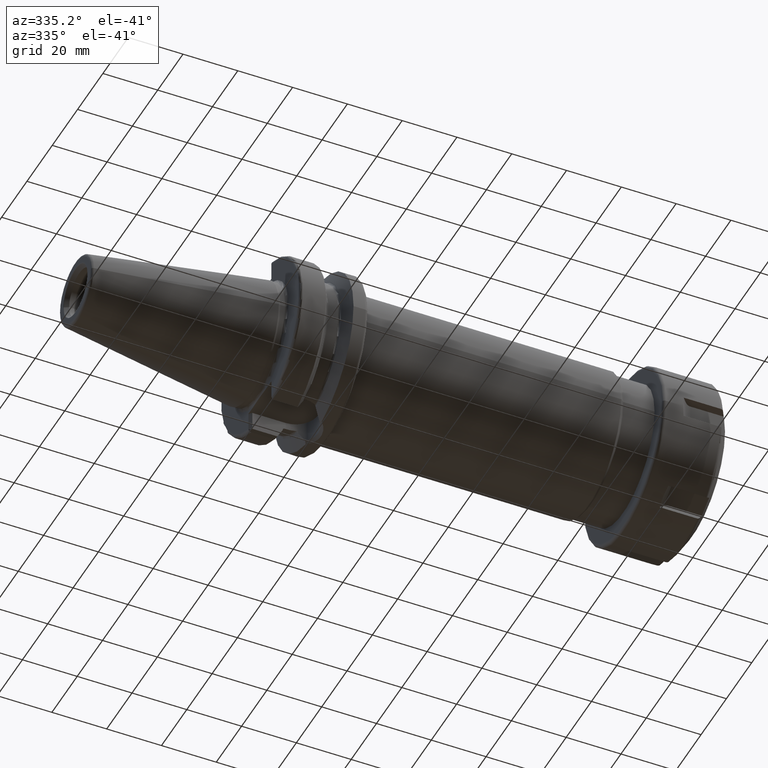
[diagram: clean part render]
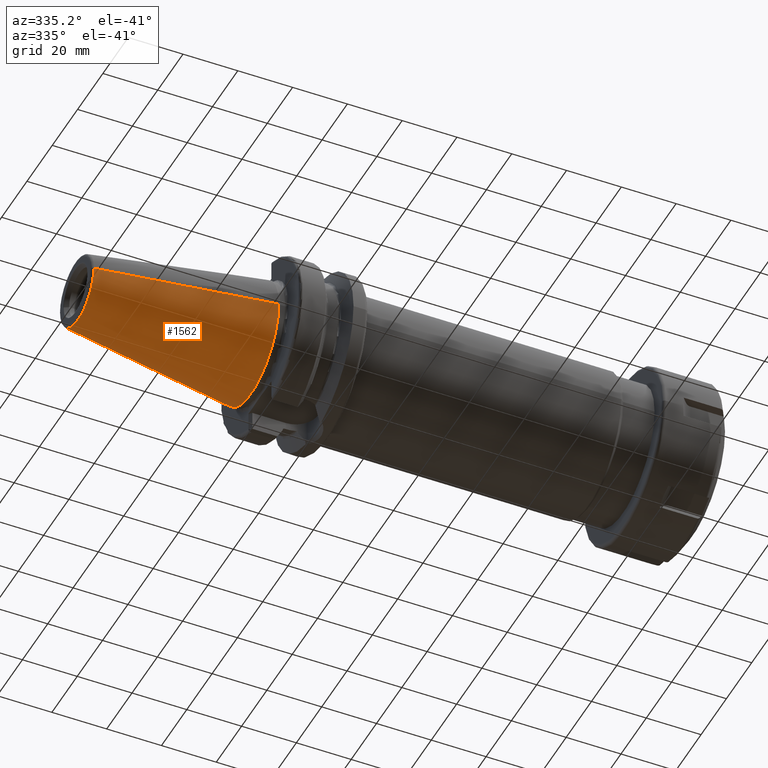
[diagram: same view with one face highlighted and labeled with its STEP entity id]
A machine part, auxiliary view. The second image highlights one B-rep face of the part: STEP entity #1562.
In plain terms, the highlighted conical surface has half-angle 8.298 deg.
Its self-contained STEP definition (entity closure, byte-faithful):
#32=CARTESIAN_POINT('',(-6.454431866917E1,0.E0,0.E0));
#33=DIRECTION('',(-1.E0,0.E0,0.E0));
#34=DIRECTION('',(0.E0,1.E0,0.E0));
#35=AXIS2_PLACEMENT_3D('',#32,#33,#34);
#47=DIRECTION('',(-9.895312636440E-1,-1.443186691705E-1,0.E0));
#48=VECTOR('',#47,6.394703124850E1);
#49=CARTESIAN_POINT('',(-1.266732031557E0,2.204025284980E1,0.E0));
#50=LINE('',#49,#48);
#51=DIRECTION('',(-9.895312636440E-1,1.443186691705E-1,0.E0));
#52=VECTOR('',#51,6.394703124850E1);
#53=CARTESIAN_POINT('',(-1.266732031557E0,-2.204025284980E1,0.E0));
#54=LINE('',#53,#52);
#55=CARTESIAN_POINT('',(-1.266732031557E0,0.E0,0.E0));
#56=DIRECTION('',(-1.E0,0.E0,0.E0));
#57=DIRECTION('',(0.E0,1.E0,0.E0));
#58=AXIS2_PLACEMENT_3D('',#55,#56,#57);
#1226=CARTESIAN_POINT('',(-6.454431866917E1,1.281150240261E1,0.E0));
#1228=VERTEX_POINT('',#1226);
#1230=CARTESIAN_POINT('',(-6.454431866917E1,-1.281150240261E1,0.E0));
#1232=VERTEX_POINT('',#1230);
#1445=CARTESIAN_POINT('',(-1.266732031557E0,2.204025284980E1,0.E0));
#1446=VERTEX_POINT('',#1445);
#1447=CARTESIAN_POINT('',(-1.266732031557E0,-2.204025284980E1,0.E0));
#1448=VERTEX_POINT('',#1447);
#1550=CARTESIAN_POINT('',(-3.290552535036E1,0.E0,0.E0));
#1551=DIRECTION('',(1.E0,0.E0,0.E0));
#1552=DIRECTION('',(0.E0,-1.E0,0.E0));
#1553=AXIS2_PLACEMENT_3D('',#1550,#1551,#1552);
#1554=CONICAL_SURFACE('',#1553,1.742587762621E1,8.297826828206E0);
#1555=ORIENTED_EDGE('',*,*,#1540,.T.);
#1556=ORIENTED_EDGE('',*,*,#1517,.T.);
#1557=ORIENTED_EDGE('',*,*,#1544,.F.);
#1559=ORIENTED_EDGE('',*,*,#1558,.F.);
#1560=EDGE_LOOP('',(#1555,#1556,#1557,#1559));
#1561=FACE_OUTER_BOUND('',#1560,.F.);
#1562=ADVANCED_FACE('',(#1561),#1554,.T.);
#36=CIRCLE('',#35,1.281150240261E1);
#59=CIRCLE('',#58,2.204025284980E1);
#1517=EDGE_CURVE('',#1228,#1232,#36,.T.);
#1540=EDGE_CURVE('',#1446,#1228,#50,.T.);
#1544=EDGE_CURVE('',#1448,#1232,#54,.T.);
#1558=EDGE_CURVE('',#1446,#1448,#59,.T.);